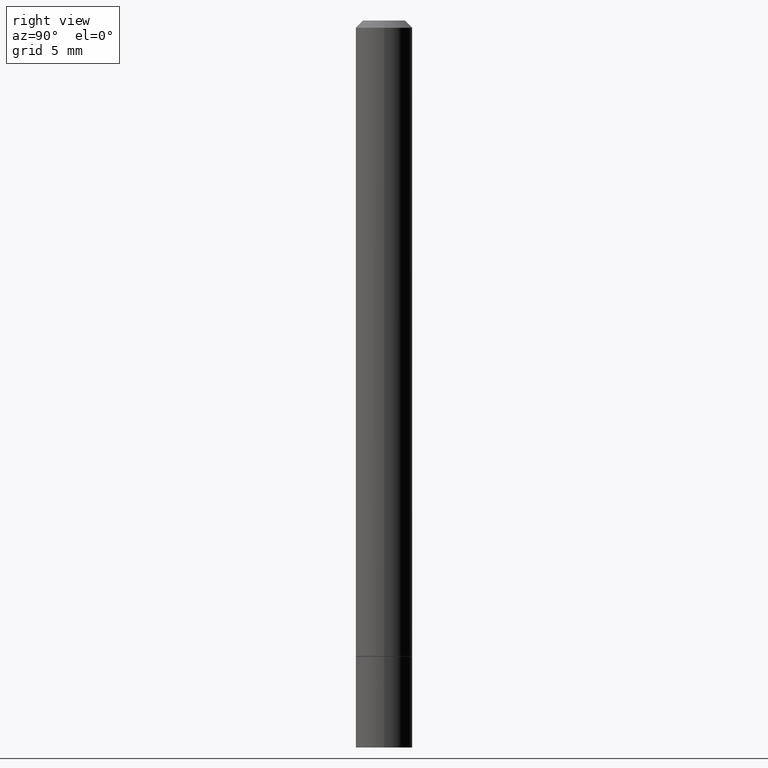
[diagram: clean part render]
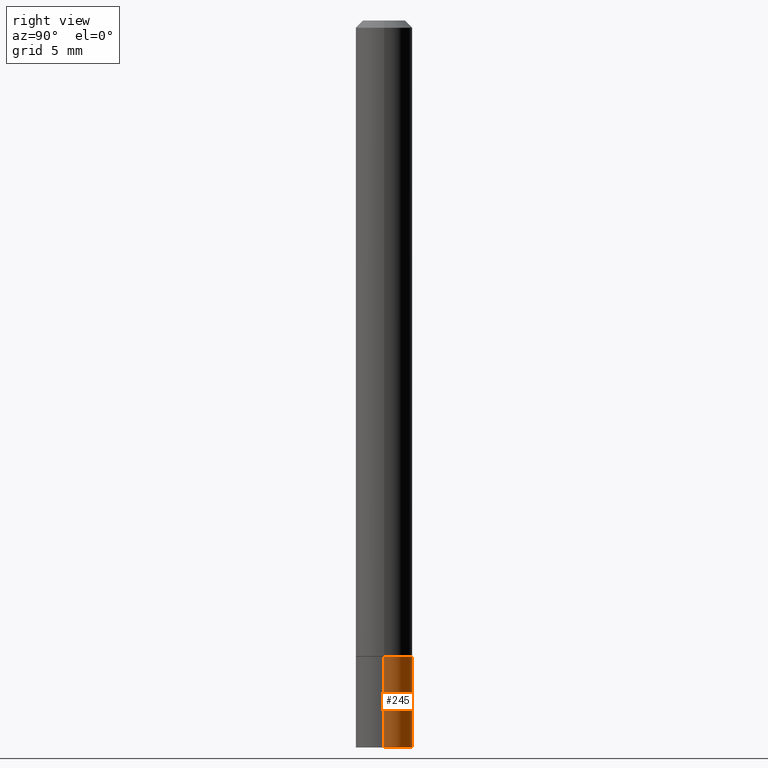
[diagram: same view with one face highlighted and labeled with its STEP entity id]
A machine part, right view. The second image highlights one B-rep face of the part: STEP entity #245.
In plain terms, the highlighted cylindrical surface (edge-blend (fillet) strip) has radius 1.9837 mm, axis along (-0, 0, 1).
Its self-contained STEP definition (entity closure, byte-faithful):
#8 = LINE ( 'NONE', #215, #91 ) ;
#10 = CARTESIAN_POINT ( 'NONE',  ( 0.000000000000000000, 0.000000000000000000, 0.000000000000000000 ) ) ;
#21 = DIRECTION ( 'NONE',  ( -2.445468806185136597E-29, 3.491481338843145583E-15, 1.000000000000000000 ) ) ;
#31 = VERTEX_POINT ( 'NONE', #121 ) ;
#37 = DIRECTION ( 'NONE',  ( -2.445468806185136877E-29, 3.491481338843145188E-15, 1.000000000000000000 ) ) ;
#38 = DIRECTION ( 'NONE',  ( 1.000000000000000000, -6.982962677686266711E-15, 0.000000000000000000 ) ) ;
#40 = DIRECTION ( 'NONE',  ( -2.445468806185136597E-29, 3.491481338843145583E-15, 1.000000000000000000 ) ) ;
#54 = EDGE_CURVE ( 'NONE', #66, #135, #286, .T. ) ;
#57 = AXIS2_PLACEMENT_3D ( 'NONE', #232, #21, #116 ) ;
#66 = VERTEX_POINT ( 'NONE', #259 ) ;
#91 = VECTOR ( 'NONE', #37, 39.37007874015748143 ) ;
#93 = DIRECTION ( 'NONE',  ( -2.445468806185136597E-29, 3.491481338843145583E-15, 1.000000000000000000 ) ) ;
#116 = DIRECTION ( 'NONE',  ( 1.000000000000000000, -6.982962677686266711E-15, 0.000000000000000000 ) ) ;
#121 = CARTESIAN_POINT ( 'NONE',  ( 0.07810000000000000275, -6.655461728102802107E-15, -1.750000000000000000 ) ) ;
#122 = EDGE_LOOP ( 'NONE', ( #237, #230, #293, #222 ) ) ;
#133 = CIRCLE ( 'NONE', #210, 0.07810000000000000275 ) ;
#135 = VERTEX_POINT ( 'NONE', #255 ) ;
#150 = EDGE_CURVE ( 'NONE', #267, #31, #8, .T. ) ;
#151 = VECTOR ( 'NONE', #264, 39.37007874015748143 ) ;
#159 = CARTESIAN_POINT ( 'NONE',  ( 4.279570410823988484E-29, -6.110092342975504671E-15, -1.750000000000000000 ) ) ;
#167 = EDGE_CURVE ( 'NONE', #31, #135, #133, .T. ) ;
#180 = AXIS2_PLACEMENT_3D ( 'NONE', #10, #93, #213 ) ;
#185 = CARTESIAN_POINT ( 'NONE',  ( 0.07809999999999980846, -7.518767571312246590E-15, -2.000000000000000000 ) ) ;
#210 = AXIS2_PLACEMENT_3D ( 'NONE', #159, #40, #38 ) ;
#213 = DIRECTION ( 'NONE',  ( 1.000000000000000000, -6.982962677686266711E-15, 4.876176775795935232E-29 ) ) ;
#215 = CARTESIAN_POINT ( 'NONE',  ( 0.07810000000000000275, -5.453693851272974364E-16, 3.808294061896625703E-30 ) ) ;
#222 = ORIENTED_EDGE ( 'NONE', *, *, #150, .F. ) ;
#223 = CIRCLE ( 'NONE', #57, 0.07810000000000000275 ) ;
#230 = ORIENTED_EDGE ( 'NONE', *, *, #54, .T. ) ;
#232 = CARTESIAN_POINT ( 'NONE',  ( 4.890937612370273194E-29, -6.982962677686291165E-15, -2.000000000000000000 ) ) ;
#237 = ORIENTED_EDGE ( 'NONE', *, *, #356, .T. ) ;
#245 = ADVANCED_FACE ( 'NONE', ( #303 ), #274, .T. ) ;
#255 = CARTESIAN_POINT ( 'NONE',  ( -0.07810000000000000275, -5.991593633702259259E-15, -1.750000000000000000 ) ) ;
#259 = CARTESIAN_POINT ( 'NONE',  ( -0.07809999999999980846, -6.437593292558994518E-15, -2.000000000000000000 ) ) ;
#264 = DIRECTION ( 'NONE',  ( -2.445468806185136877E-29, 3.491481338843145188E-15, 1.000000000000000000 ) ) ;
#267 = VERTEX_POINT ( 'NONE', #185 ) ;
#274 = CYLINDRICAL_SURFACE ( 'NONE', #180, 0.07810000000000000275 ) ;
#286 = LINE ( 'NONE', #289, #151 ) ;
#289 = CARTESIAN_POINT ( 'NONE',  ( -0.07810000000000000275, 5.549338766286382647E-16, -3.841688305489081275E-30 ) ) ;
#293 = ORIENTED_EDGE ( 'NONE', *, *, #167, .F. ) ;
#303 = FACE_OUTER_BOUND ( 'NONE', #122, .T. ) ;
#356 = EDGE_CURVE ( 'NONE', #267, #66, #223, .T. ) ;